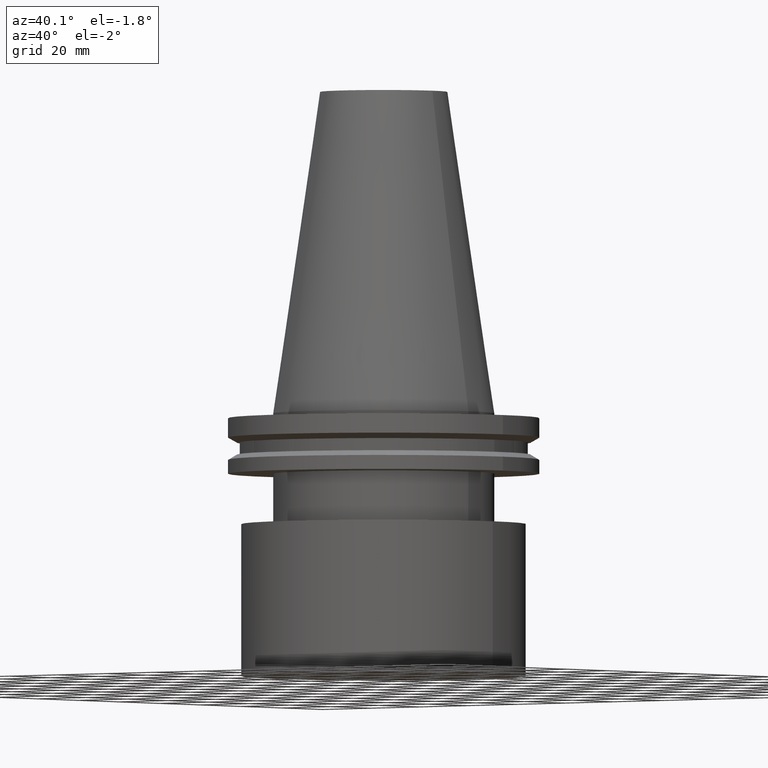
[diagram: clean part render]
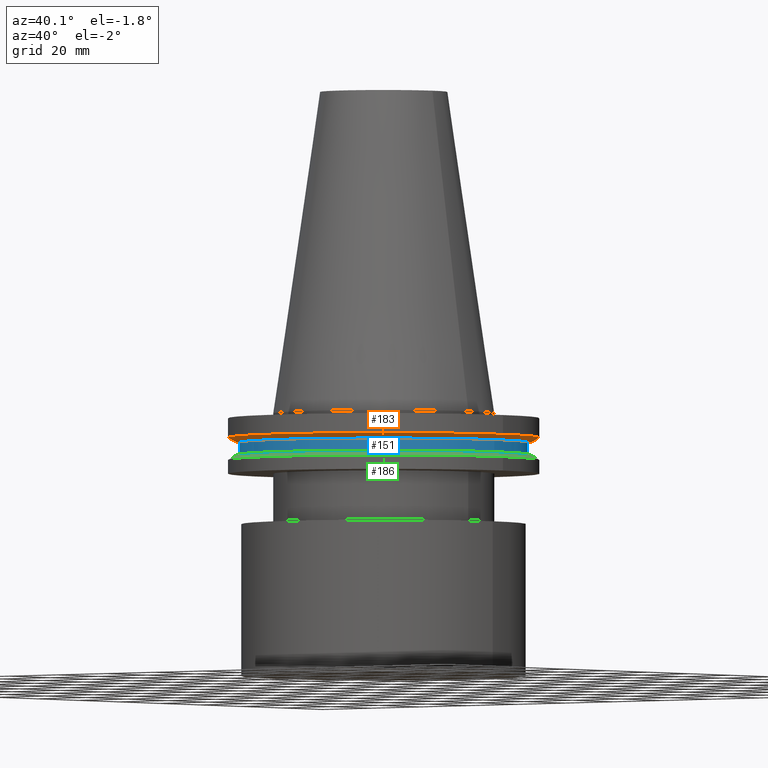
[diagram: same view with three faces highlighted in distinct colors, each labeled with its STEP entity id]
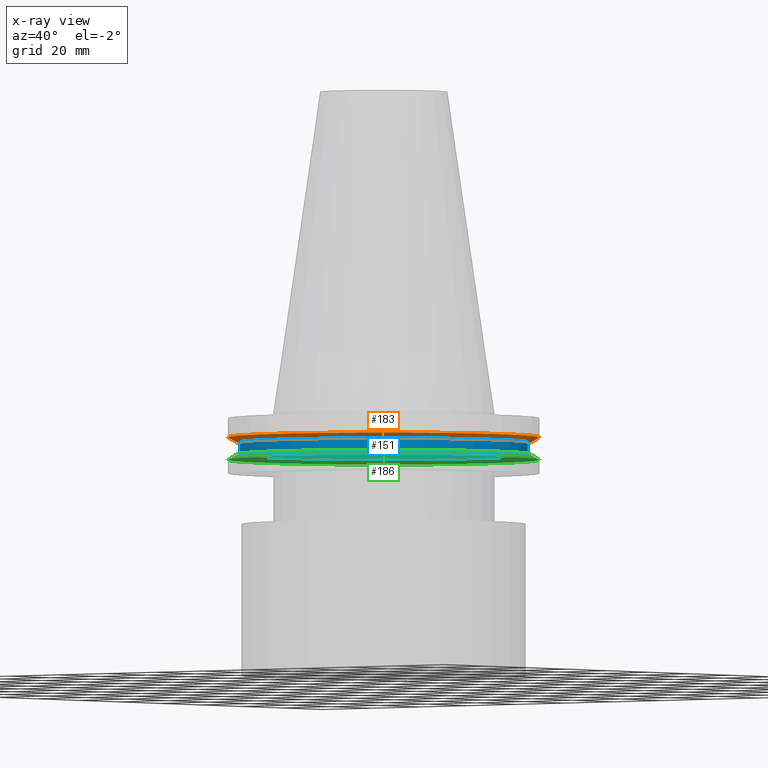
[diagram: x-ray of the same camera — body ghosted, the three highlighted faces saturated]
A machine part, auxiliary view with three faces highlighted in distinct colors.
The next image is the same camera in x-ray (body ghosted, the three faces saturated) — at least one of them is partly hidden behind the body in this view.
Their STEP definitions:

[orange] entity #183 — the highlighted conical surface has half-angle 60 deg.
#7 = CIRCLE ( 'NONE', #134, 49.21500000000000341 ) ;
#20 = VERTEX_POINT ( 'NONE', #22 ) ;
#21 = DIRECTION ( 'NONE',  ( -0.000000000000000000, -0.000000000000000000, 1.000000000000000000 ) ) ;
#22 = CARTESIAN_POINT ( 'NONE',  ( 49.21500000000000341, 0.000000000000000000, -7.602389855251287187 ) ) ;
#52 = AXIS2_PLACEMENT_3D ( 'NONE', #126, #360, #93 ) ;
#66 = EDGE_CURVE ( 'NONE', #185, #185, #201, .T. ) ;
#84 = CARTESIAN_POINT ( 'NONE',  ( 46.43919780457007818, 0.000000000000000000, -9.204999999999991189 ) ) ;
#93 = DIRECTION ( 'NONE',  ( 1.000000000000000000, 0.000000000000000000, 0.000000000000000000 ) ) ;
#126 = CARTESIAN_POINT ( 'NONE',  ( 0.000000000000000000, 0.000000000000000000, -9.204999999999991189 ) ) ;
#131 = ORIENTED_EDGE ( 'NONE', *, *, #66, .T. ) ;
#134 = AXIS2_PLACEMENT_3D ( 'NONE', #283, #203, #263 ) ;
#145 = AXIS2_PLACEMENT_3D ( 'NONE', #244, #21, #212 ) ;
#167 = ORIENTED_EDGE ( 'NONE', *, *, #253, .F. ) ;
#183 = ADVANCED_FACE ( 'NONE', ( #335, #304 ), #228, .T. ) ;
#185 = VERTEX_POINT ( 'NONE', #84 ) ;
#201 = CIRCLE ( 'NONE', #145, 46.43919780457007818 ) ;
#203 = DIRECTION ( 'NONE',  ( -0.000000000000000000, -0.000000000000000000, 1.000000000000000000 ) ) ;
#212 = DIRECTION ( 'NONE',  ( 1.000000000000000000, 0.000000000000000000, 0.000000000000000000 ) ) ;
#228 = CONICAL_SURFACE ( 'NONE', #52, 46.43919780457007818, 1.047197551196575205 ) ;
#232 = EDGE_LOOP ( 'NONE', ( #131 ) ) ;
#244 = CARTESIAN_POINT ( 'NONE',  ( 0.000000000000000000, 0.000000000000000000, -9.204999999999991189 ) ) ;
#253 = EDGE_CURVE ( 'NONE', #20, #20, #7, .T. ) ;
#263 = DIRECTION ( 'NONE',  ( 1.000000000000000000, 0.000000000000000000, 0.000000000000000000 ) ) ;
#283 = CARTESIAN_POINT ( 'NONE',  ( 0.000000000000000000, 0.000000000000000000, -7.602389855251287187 ) ) ;
#304 = FACE_BOUND ( 'NONE', #232, .T. ) ;
#335 = FACE_OUTER_BOUND ( 'NONE', #375, .T. ) ;
#360 = DIRECTION ( 'NONE',  ( -0.000000000000000000, -0.000000000000000000, 1.000000000000000000 ) ) ;
#375 = EDGE_LOOP ( 'NONE', ( #167 ) ) ;

[blue] entity #151 — the highlighted cylindrical surface (bore or boss wall) has radius 45.645 mm, axis along (-0, -0, 1).
#1 = EDGE_CURVE ( 'NONE', #272, #272, #247, .T. ) ;
#9 = DIRECTION ( 'NONE',  ( 1.000000000000000000, 0.000000000000000000, 0.000000000000000000 ) ) ;
#71 = DIRECTION ( 'NONE',  ( -0.000000000000000000, -0.000000000000000000, 1.000000000000000000 ) ) ;
#80 = ORIENTED_EDGE ( 'NONE', *, *, #1, .F. ) ;
#90 = EDGE_LOOP ( 'NONE', ( #80 ) ) ;
#118 = CYLINDRICAL_SURFACE ( 'NONE', #278, 45.64500000000000313 ) ;
#121 = DIRECTION ( 'NONE',  ( 1.000000000000000000, 0.000000000000000000, 0.000000000000000000 ) ) ;
#136 = EDGE_LOOP ( 'NONE', ( #320 ) ) ;
#149 = CARTESIAN_POINT ( 'NONE',  ( 0.000000000000000000, 0.000000000000000000, 101.5999999999999943 ) ) ;
#151 = ADVANCED_FACE ( 'NONE', ( #175, #242 ), #118, .T. ) ;
#175 = FACE_OUTER_BOUND ( 'NONE', #90, .T. ) ;
#178 = AXIS2_PLACEMENT_3D ( 'NONE', #215, #300, #181 ) ;
#181 = DIRECTION ( 'NONE',  ( 1.000000000000000000, 0.000000000000000000, 0.000000000000000000 ) ) ;
#182 = CARTESIAN_POINT ( 'NONE',  ( 45.64500000000000313, 0.000000000000000000, -13.05499999999999794 ) ) ;
#215 = CARTESIAN_POINT ( 'NONE',  ( 0.000000000000000000, 0.000000000000000000, -9.204999999999991189 ) ) ;
#235 = DIRECTION ( 'NONE',  ( -0.000000000000000000, -0.000000000000000000, 1.000000000000000000 ) ) ;
#242 = FACE_OUTER_BOUND ( 'NONE', #136, .T. ) ;
#243 = CARTESIAN_POINT ( 'NONE',  ( 45.64500000000000313, 0.000000000000000000, -9.204999999999991189 ) ) ;
#247 = CIRCLE ( 'NONE', #178, 45.64500000000000313 ) ;
#264 = AXIS2_PLACEMENT_3D ( 'NONE', #376, #71, #9 ) ;
#272 = VERTEX_POINT ( 'NONE', #243 ) ;
#278 = AXIS2_PLACEMENT_3D ( 'NONE', #149, #235, #121 ) ;
#290 = EDGE_CURVE ( 'NONE', #329, #329, #382, .T. ) ;
#300 = DIRECTION ( 'NONE',  ( -0.000000000000000000, -0.000000000000000000, 1.000000000000000000 ) ) ;
#320 = ORIENTED_EDGE ( 'NONE', *, *, #290, .T. ) ;
#329 = VERTEX_POINT ( 'NONE', #182 ) ;
#376 = CARTESIAN_POINT ( 'NONE',  ( 0.000000000000000000, 0.000000000000000000, -13.05499999999999794 ) ) ;
#382 = CIRCLE ( 'NONE', #264, 45.64500000000000313 ) ;

[green] entity #186 — the highlighted conical surface has half-angle 60 deg.
#3 = CARTESIAN_POINT ( 'NONE',  ( 0.000000000000000000, 0.000000000000000000, -14.65761014474876944 ) ) ;
#12 = DIRECTION ( 'NONE',  ( -0.000000000000000000, -0.000000000000000000, 1.000000000000000000 ) ) ;
#13 = ORIENTED_EDGE ( 'NONE', *, *, #301, .F. ) ;
#28 = DIRECTION ( 'NONE',  ( 0.000000000000000000, 0.000000000000000000, -1.000000000000000000 ) ) ;
#35 = ORIENTED_EDGE ( 'NONE', *, *, #224, .T. ) ;
#96 = AXIS2_PLACEMENT_3D ( 'NONE', #3, #12, #345 ) ;
#114 = CARTESIAN_POINT ( 'NONE',  ( 0.000000000000000000, 0.000000000000000000, -13.05499999999999794 ) ) ;
#138 = CIRCLE ( 'NONE', #96, 49.21499999999998920 ) ;
#144 = CARTESIAN_POINT ( 'NONE',  ( 49.21499999999998920, 0.000000000000000000, -14.65761014474876944 ) ) ;
#156 = DIRECTION ( 'NONE',  ( -1.000000000000000000, 0.000000000000000000, 0.000000000000000000 ) ) ;
#186 = ADVANCED_FACE ( 'NONE', ( #187, #218 ), #330, .T. ) ;
#187 = FACE_BOUND ( 'NONE', #265, .T. ) ;
#190 = AXIS2_PLACEMENT_3D ( 'NONE', #114, #225, #255 ) ;
#197 = CIRCLE ( 'NONE', #190, 46.43919780457007818 ) ;
#210 = VERTEX_POINT ( 'NONE', #327 ) ;
#218 = FACE_OUTER_BOUND ( 'NONE', #286, .T. ) ;
#224 = EDGE_CURVE ( 'NONE', #359, #359, #138, .T. ) ;
#225 = DIRECTION ( 'NONE',  ( -0.000000000000000000, -0.000000000000000000, 1.000000000000000000 ) ) ;
#255 = DIRECTION ( 'NONE',  ( 1.000000000000000000, 0.000000000000000000, 0.000000000000000000 ) ) ;
#265 = EDGE_LOOP ( 'NONE', ( #13 ) ) ;
#277 = CARTESIAN_POINT ( 'NONE',  ( 0.000000000000000000, 0.000000000000000000, -14.65761014474876944 ) ) ;
#286 = EDGE_LOOP ( 'NONE', ( #35 ) ) ;
#295 = AXIS2_PLACEMENT_3D ( 'NONE', #277, #28, #156 ) ;
#301 = EDGE_CURVE ( 'NONE', #210, #210, #197, .T. ) ;
#327 = CARTESIAN_POINT ( 'NONE',  ( 46.43919780457007818, 0.000000000000000000, -13.05499999999999794 ) ) ;
#330 = CONICAL_SURFACE ( 'NONE', #295, 49.21499999999998920, 1.047197551196554333 ) ;
#345 = DIRECTION ( 'NONE',  ( 1.000000000000000000, 0.000000000000000000, 0.000000000000000000 ) ) ;
#359 = VERTEX_POINT ( 'NONE', #144 ) ;